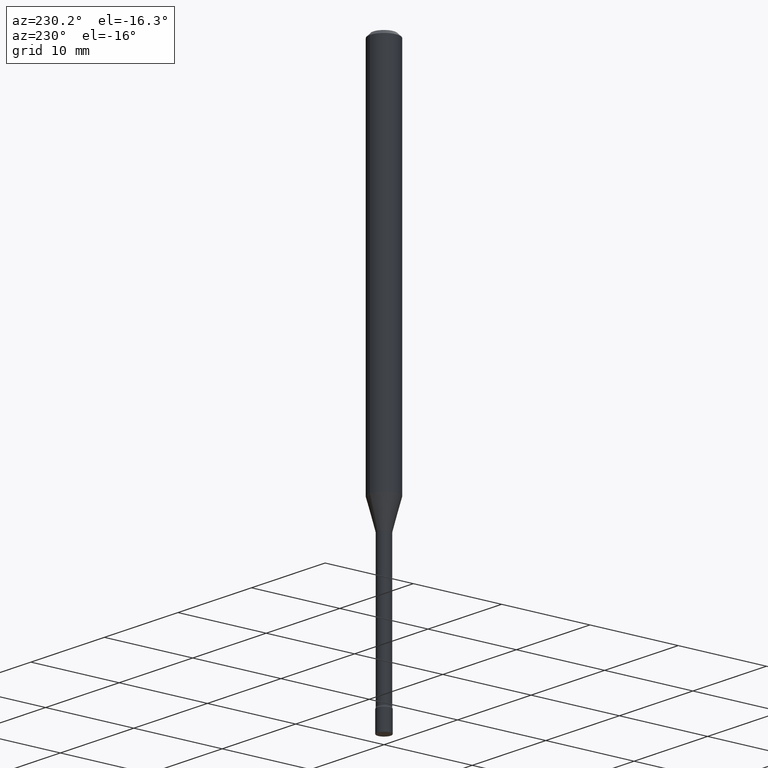
[diagram: clean part render]
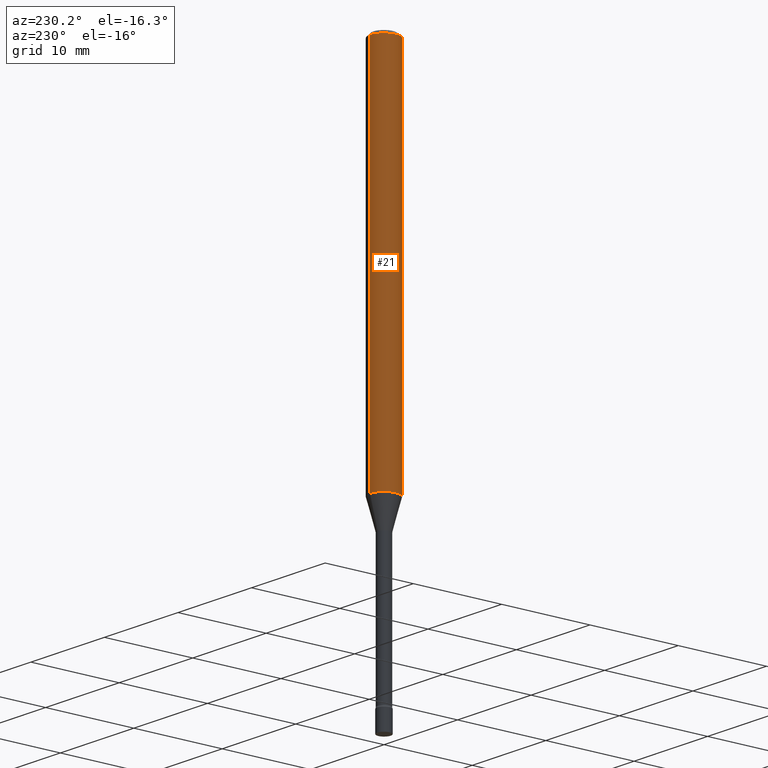
[diagram: same view with one face highlighted and labeled with its STEP entity id]
A machine part, auxiliary view. The second image highlights one B-rep face of the part: STEP entity #21.
In plain terms, the highlighted cylindrical surface (edge-blend (fillet) strip) has radius 1.5875 mm, axis along (-0, 0, 1).
Its self-contained STEP definition (entity closure, byte-faithful):
#3 = DIRECTION ( 'NONE',  ( -2.445514255903286790E-29, 3.491416252259917408E-15, 1.000000000000000000 ) ) ;
#13 = DIRECTION ( 'NONE',  ( -6.982962677686265922E-15, -1.000000000000000000, 4.370956789862821150E-15 ) ) ;
#21 = ADVANCED_FACE ( 'NONE', ( #227 ), #276, .T. ) ;
#35 = ORIENTED_EDGE ( 'NONE', *, *, #189, .F. ) ;
#51 = ORIENTED_EDGE ( 'NONE', *, *, #297, .T. ) ;
#63 = VECTOR ( 'NONE', #457, 39.37007874015748143 ) ;
#79 = AXIS2_PLACEMENT_3D ( 'NONE', #90, #142, #424 ) ;
#88 = ORIENTED_EDGE ( 'NONE', *, *, #184, .F. ) ;
#90 = CARTESIAN_POINT ( 'NONE',  ( 0.000000000000000000, 0.000000000000000000, 0.000000000000000000 ) ) ;
#91 = AXIS2_PLACEMENT_3D ( 'NONE', #251, #315, #396 ) ;
#102 = CARTESIAN_POINT ( 'NONE',  ( -4.364351673553513882E-16, -0.06250000000000580092, -1.651990657300387744 ) ) ;
#105 = DIRECTION ( 'NONE',  ( -2.445514255903287071E-29, 3.491416252259917408E-15, 1.000000000000000000 ) ) ;
#122 = CARTESIAN_POINT ( 'NONE',  ( 4.039966703047140038E-29, -5.767787029480118116E-15, -1.651990657300387966 ) ) ;
#142 = DIRECTION ( 'NONE',  ( -2.445514255903286790E-29, 3.491416252259917408E-15, 1.000000000000000000 ) ) ;
#173 = VERTEX_POINT ( 'NONE', #194 ) ;
#176 = ORIENTED_EDGE ( 'NONE', *, *, #280, .T. ) ;
#184 = EDGE_CURVE ( 'NONE', #222, #378, #332, .T. ) ;
#189 = EDGE_CURVE ( 'NONE', #173, #222, #244, .T. ) ;
#194 = CARTESIAN_POINT ( 'NONE',  ( 4.440892098501027495E-16, 0.06249999999999419215, -1.651990657300388188 ) ) ;
#218 = VECTOR ( 'NONE', #105, 39.37007874015748143 ) ;
#222 = VERTEX_POINT ( 'NONE', #442 ) ;
#224 = CARTESIAN_POINT ( 'NONE',  ( -4.364351673553916201E-16, -0.06250000000000000000, 2.182135157662448380E-16 ) ) ;
#227 = FACE_OUTER_BOUND ( 'NONE', #500, .T. ) ;
#244 = LINE ( 'NONE', #256, #218 ) ;
#251 = CARTESIAN_POINT ( 'NONE',  ( 3.668271383854937122E-31, -5.237124378389886195E-17, -0.01500000000000003067 ) ) ;
#253 = VERTEX_POINT ( 'NONE', #102 ) ;
#256 = CARTESIAN_POINT ( 'NONE',  ( 4.440892098500625669E-16, 0.06250000000000000000, -2.182135157662448380E-16 ) ) ;
#276 = CYLINDRICAL_SURFACE ( 'NONE', #79, 0.06250000000000000000 ) ;
#280 = EDGE_CURVE ( 'NONE', #173, #253, #518, .T. ) ;
#297 = EDGE_CURVE ( 'NONE', #253, #378, #455, .T. ) ;
#304 = AXIS2_PLACEMENT_3D ( 'NONE', #122, #3, #13 ) ;
#315 = DIRECTION ( 'NONE',  ( -2.445514255903286790E-29, 3.491416252259917408E-15, 1.000000000000000000 ) ) ;
#332 = CIRCLE ( 'NONE', #91, 0.06250000000000000000 ) ;
#378 = VERTEX_POINT ( 'NONE', #406 ) ;
#396 = DIRECTION ( 'NONE',  ( -6.982962677686265922E-15, -1.000000000000000000, 3.483106191921935554E-15 ) ) ;
#406 = CARTESIAN_POINT ( 'NONE',  ( -4.364351673553912750E-16, -0.06250000000000005551, -0.01499999999999981209 ) ) ;
#424 = DIRECTION ( 'NONE',  ( -6.982962677686265922E-15, -1.000000000000000000, 3.491416252259917408E-15 ) ) ;
#442 = CARTESIAN_POINT ( 'NONE',  ( 4.440892098501032425E-16, 0.06249999999999995143, -0.01500000000000024751 ) ) ;
#455 = LINE ( 'NONE', #224, #63 ) ;
#457 = DIRECTION ( 'NONE',  ( -2.445514255903287071E-29, 3.491416252259917408E-15, 1.000000000000000000 ) ) ;
#500 = EDGE_LOOP ( 'NONE', ( #35, #176, #51, #88 ) ) ;
#518 = CIRCLE ( 'NONE', #304, 0.06250000000000000000 ) ;